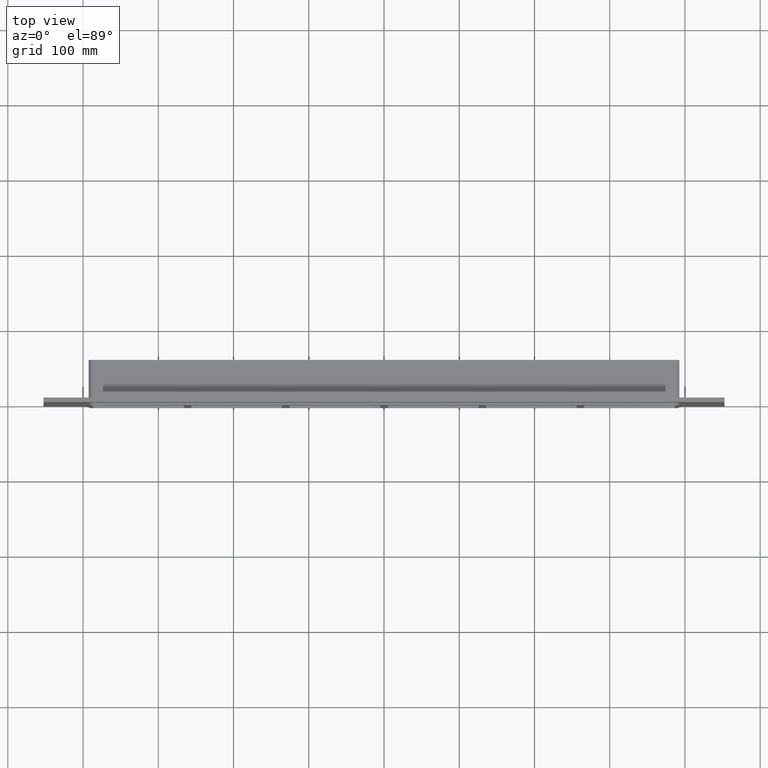
[diagram: clean part render]
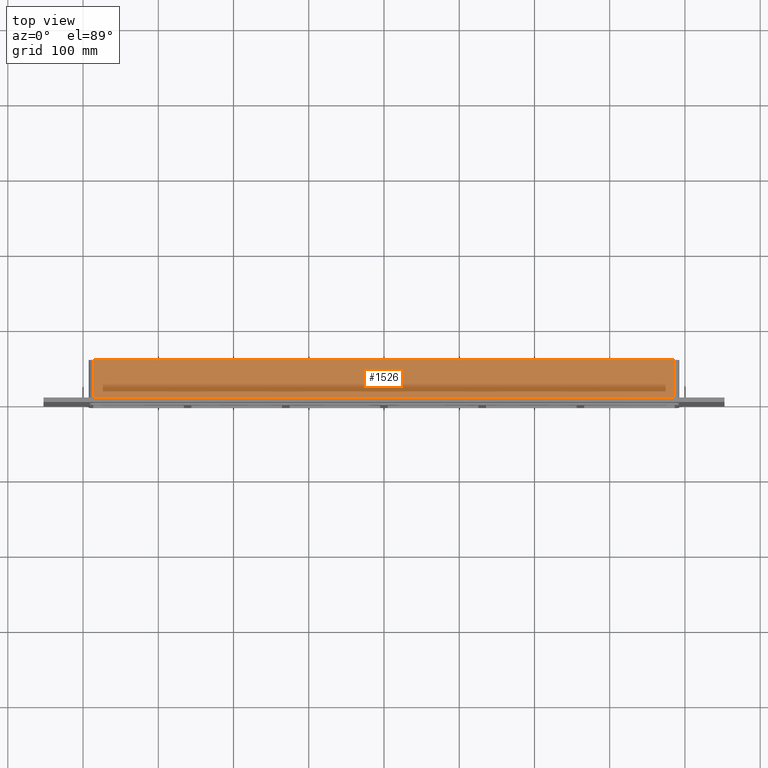
[diagram: same view with one face highlighted and labeled with its STEP entity id]
A machine part, top view. The second image highlights one B-rep face of the part: STEP entity #1526.
In plain terms, the highlighted planar face has unit normal (0, 0, 1).
Its self-contained STEP definition (entity closure, byte-faithful):
#843=CARTESIAN_POINT('',(386.50000000000006,6.000000000000001,115.0));
#844=VERTEX_POINT('',#843);
#852=CARTESIAN_POINT('',(-386.50000000000023,6.000000000000001,115.0));
#853=VERTEX_POINT('',#852);
#854=CARTESIAN_POINT('',(-386.50000000000017,6.000000000000001,115.0));
#855=DIRECTION('',(1.0,0.0,0.0));
#856=VECTOR('',#855,773.00000000000023);
#857=LINE('',#854,#856);
#858=EDGE_CURVE('',#853,#844,#857,.T.);
#1124=CARTESIAN_POINT('',(386.50000000000011,57.0,115.0));
#1125=VERTEX_POINT('',#1124);
#1133=CARTESIAN_POINT('',(386.50000000000006,57.0,115.0));
#1134=DIRECTION('',(0.0,-1.0,0.0));
#1135=VECTOR('',#1134,51.0);
#1136=LINE('',#1133,#1135);
#1137=EDGE_CURVE('',#1125,#844,#1136,.T.);
#1491=CARTESIAN_POINT('',(-386.50000000000023,57.0,115.0));
#1492=VERTEX_POINT('',#1491);
#1493=CARTESIAN_POINT('',(-386.50000000000023,6.000000000000001,115.0));
#1494=DIRECTION('',(0.0,1.0,0.0));
#1495=VECTOR('',#1494,51.0);
#1496=LINE('',#1493,#1495);
#1497=EDGE_CURVE('',#853,#1492,#1496,.T.);
#1510=CARTESIAN_POINT('',(-392.50000000000011,0.0,115.0));
#1511=DIRECTION('',(0.0,0.0,1.0));
#1512=DIRECTION('',(1.0,0.0,0.0));
#1513=AXIS2_PLACEMENT_3D('',#1510,#1511,#1512);
#1514=PLANE('',#1513);
#1515=ORIENTED_EDGE('',*,*,#858,.T.);
#1516=ORIENTED_EDGE('',*,*,#1137,.F.);
#1517=CARTESIAN_POINT('',(-386.50000000000023,57.0,115.0));
#1518=DIRECTION('',(1.0,0.0,0.0));
#1519=VECTOR('',#1518,773.00000000000034);
#1520=LINE('',#1517,#1519);
#1521=EDGE_CURVE('',#1492,#1125,#1520,.T.);
#1522=ORIENTED_EDGE('',*,*,#1521,.F.);
#1523=ORIENTED_EDGE('',*,*,#1497,.F.);
#1524=EDGE_LOOP('',(#1515,#1516,#1522,#1523));
#1525=FACE_OUTER_BOUND('',#1524,.T.);
#1526=ADVANCED_FACE('',(#1525),#1514,.T.);